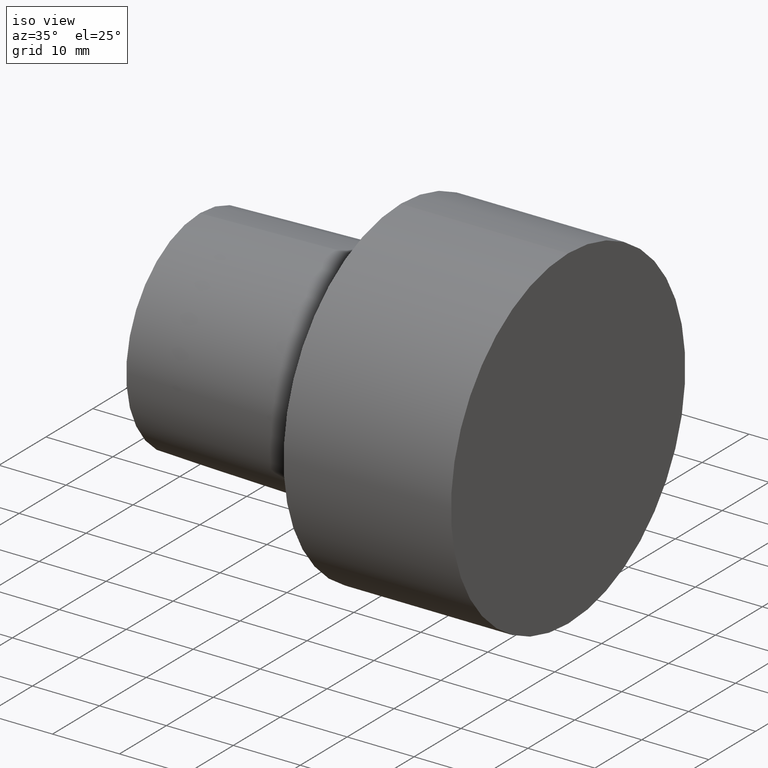
[diagram: clean part render]
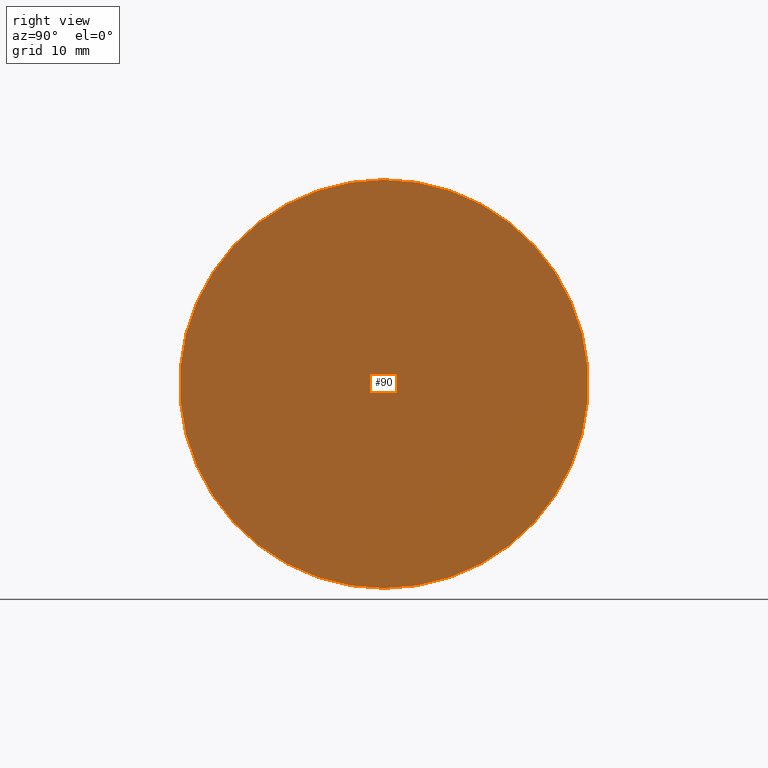
[diagram: tour spotlight — one face highlighted and labeled with its STEP entity id]
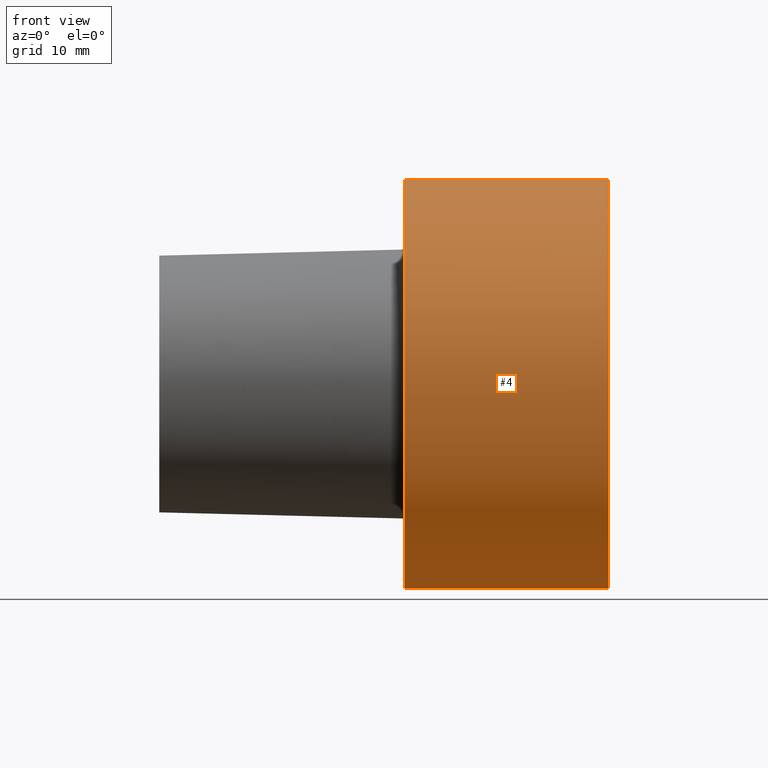
[diagram: tour spotlight — one face highlighted and labeled with its STEP entity id]
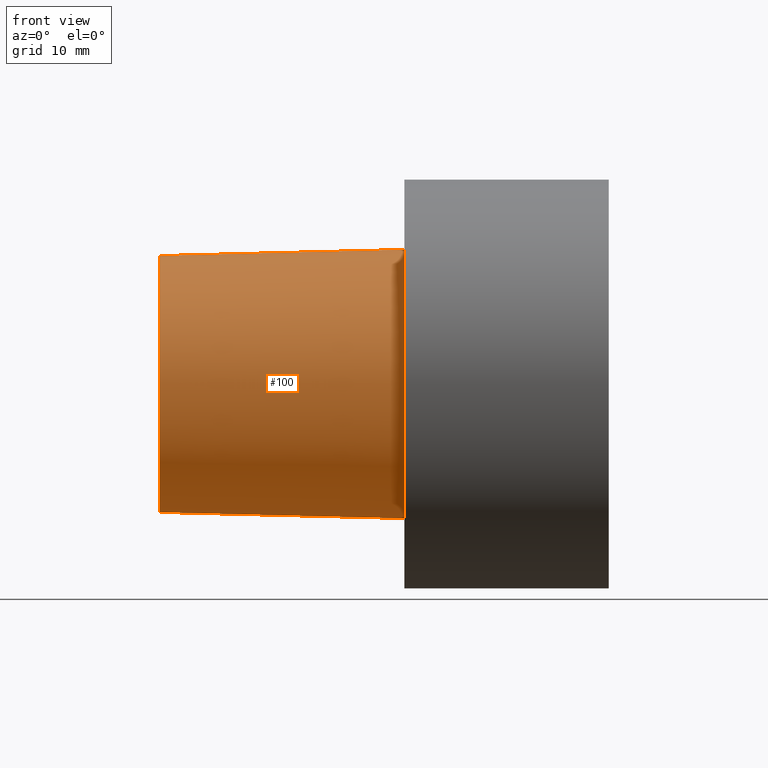
[diagram: tour spotlight — one face highlighted and labeled with its STEP entity id]
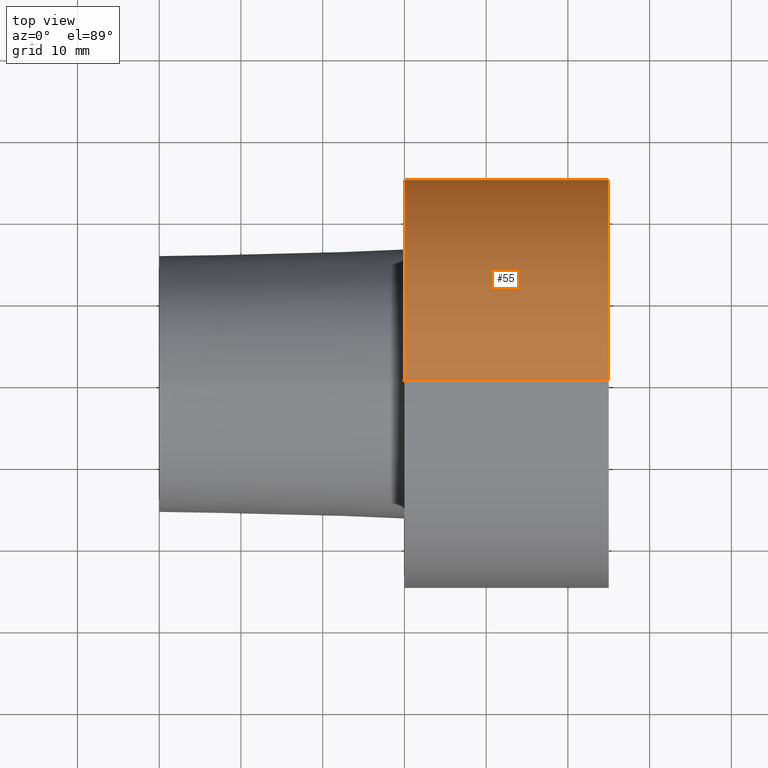
[diagram: tour spotlight — one face highlighted and labeled with its STEP entity id]
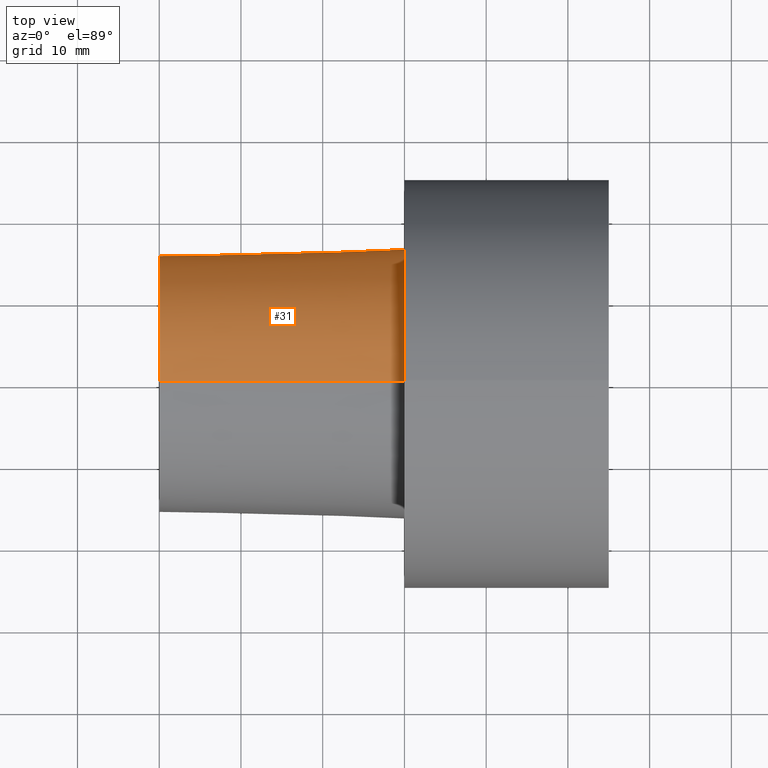
[diagram: tour spotlight — one face highlighted and labeled with its STEP entity id]
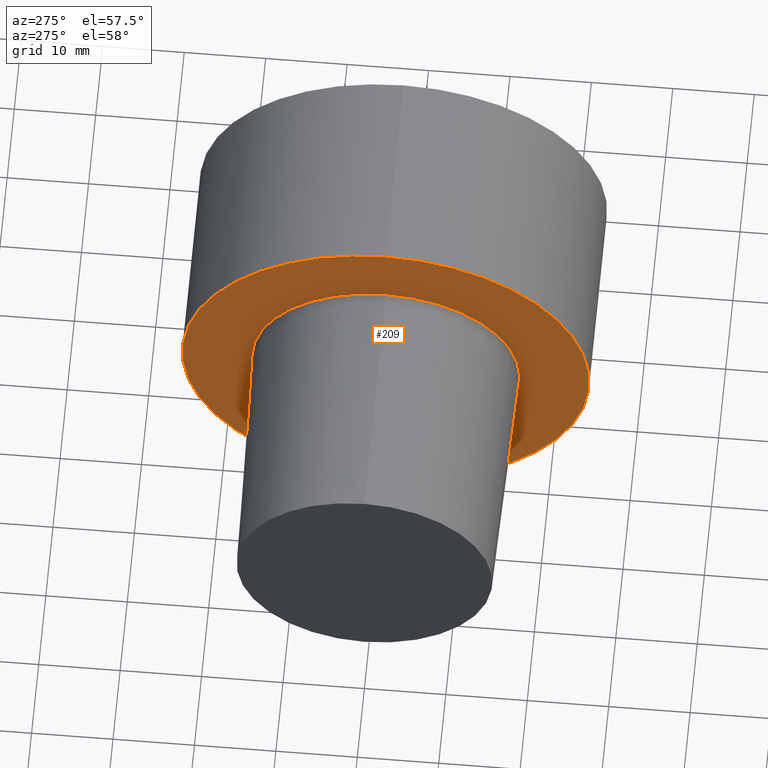
[diagram: tour spotlight — one face highlighted and labeled with its STEP entity id]
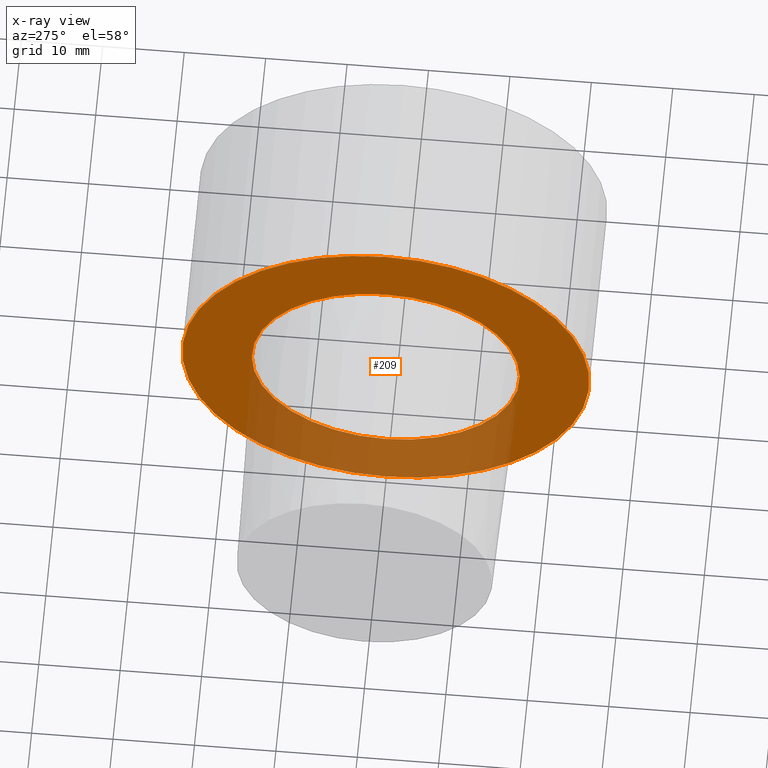
[diagram: x-ray of the same camera — body ghosted, this tour face saturated]
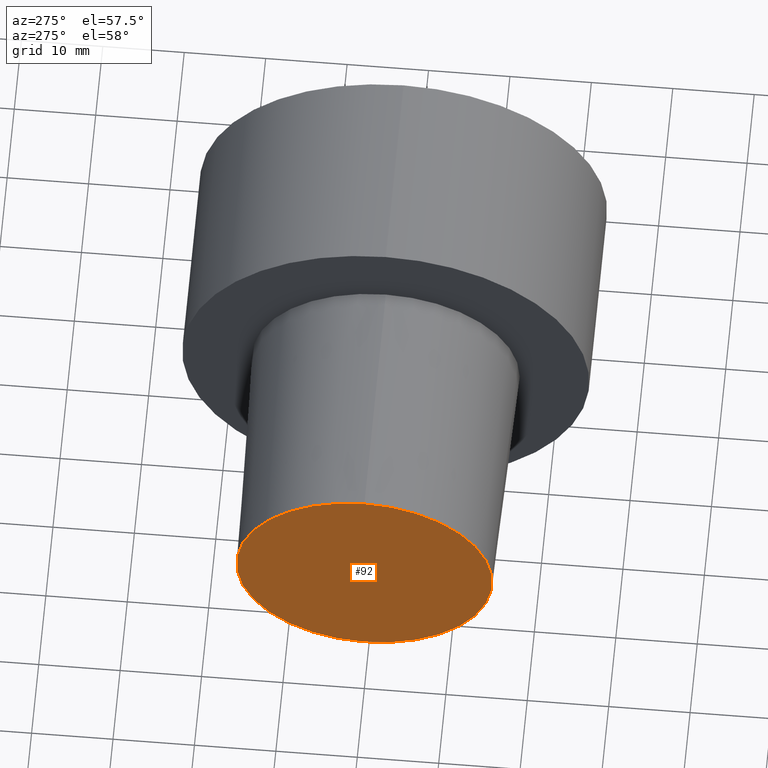
[diagram: tour spotlight — one face highlighted and labeled with its STEP entity id]
A machine part: a face-by-face anatomy tour. The part has 7 B-rep faces; the first image is the clean iso view, then the 7 largest visible faces are spotlighted one at a time (largest first), each with its STEP entity span.

Face 1 — right view, entity #90. In plain terms, the highlighted planar face has unit normal (-1, 0, 0).
Definition (entity closure, byte-faithful):
#5 = EDGE_LOOP ( 'NONE', ( #125, #108 ) ) ;
#14 = CARTESIAN_POINT ( 'NONE',  ( 24.99999997449999967, 3.061616994745535943E-15, -24.99999997449999967 ) ) ;
#19 = AXIS2_PLACEMENT_3D ( 'NONE', #191, #217, #151 ) ;
#26 = FACE_OUTER_BOUND ( 'NONE', #5, .T. ) ;
#56 = AXIS2_PLACEMENT_3D ( 'NONE', #128, #69, #252 ) ;
#60 = CIRCLE ( 'NONE', #19, 24.99999997449999967 ) ;
#69 = DIRECTION ( 'NONE',  ( -1.000000000000000000, 0.000000000000000000, 0.000000000000000000 ) ) ;
#86 = CARTESIAN_POINT ( 'NONE',  ( 24.99999997449999967, 0.000000000000000000, 0.000000000000000000 ) ) ;
#90 = ADVANCED_FACE ( 'NONE', ( #26 ), #104, .F. ) ;
#104 = PLANE ( 'NONE',  #153 ) ;
#108 = ORIENTED_EDGE ( 'NONE', *, *, #136, .F. ) ;
#125 = ORIENTED_EDGE ( 'NONE', *, *, #167, .F. ) ;
#128 = CARTESIAN_POINT ( 'NONE',  ( 24.99999997449999967, 0.000000000000000000, 0.000000000000000000 ) ) ;
#136 = EDGE_CURVE ( 'NONE', #246, #244, #181, .T. ) ;
#151 = DIRECTION ( 'NONE',  ( 0.000000000000000000, 0.000000000000000000, 1.000000000000000000 ) ) ;
#152 = DIRECTION ( 'NONE',  ( -1.000000000000000000, 0.000000000000000000, 0.000000000000000000 ) ) ;
#153 = AXIS2_PLACEMENT_3D ( 'NONE', #86, #152, #212 ) ;
#167 = EDGE_CURVE ( 'NONE', #244, #246, #60, .T. ) ;
#181 = CIRCLE ( 'NONE', #56, 24.99999997449999967 ) ;
#191 = CARTESIAN_POINT ( 'NONE',  ( 24.99999997449999967, 0.000000000000000000, 0.000000000000000000 ) ) ;
#212 = DIRECTION ( 'NONE',  ( 0.000000000000000000, 0.000000000000000000, 1.000000000000000000 ) ) ;
#217 = DIRECTION ( 'NONE',  ( -1.000000000000000000, 0.000000000000000000, 0.000000000000000000 ) ) ;
#244 = VERTEX_POINT ( 'NONE', #254 ) ;
#246 = VERTEX_POINT ( 'NONE', #14 ) ;
#252 = DIRECTION ( 'NONE',  ( 0.000000000000000000, 0.000000000000000000, 1.000000000000000000 ) ) ;
#254 = CARTESIAN_POINT ( 'NONE',  ( 24.99999997449999967, 0.000000000000000000, 24.99999997449999967 ) ) ;

Face 2 — front view, entity #4. In plain terms, the highlighted cylindrical surface (partial cylindrical patch) has radius 25 mm, axis along (-1, 0, 0).
Definition (entity closure, byte-faithful):
#4 = ADVANCED_FACE ( 'NONE', ( #140 ), #119, .T. ) ;
#13 = EDGE_CURVE ( 'NONE', #244, #40, #102, .T. ) ;
#14 = CARTESIAN_POINT ( 'NONE',  ( 24.99999997449999967, 3.061616994745535943E-15, -24.99999997449999967 ) ) ;
#15 = CARTESIAN_POINT ( 'NONE',  ( -29.99999996940000102, 3.061616994745535943E-15, -24.99999997449999967 ) ) ;
#21 = AXIS2_PLACEMENT_3D ( 'NONE', #81, #207, #183 ) ;
#22 = ORIENTED_EDGE ( 'NONE', *, *, #192, .F. ) ;
#33 = DIRECTION ( 'NONE',  ( -1.000000000000000000, 0.000000000000000000, 0.000000000000000000 ) ) ;
#40 = VERTEX_POINT ( 'NONE', #247 ) ;
#41 = AXIS2_PLACEMENT_3D ( 'NONE', #129, #111, #132 ) ;
#56 = AXIS2_PLACEMENT_3D ( 'NONE', #128, #69, #252 ) ;
#69 = DIRECTION ( 'NONE',  ( -1.000000000000000000, 0.000000000000000000, 0.000000000000000000 ) ) ;
#81 = CARTESIAN_POINT ( 'NONE',  ( -29.99999996940000102, 0.000000000000000000, 0.000000000000000000 ) ) ;
#82 = VERTEX_POINT ( 'NONE', #138 ) ;
#88 = VECTOR ( 'NONE', #33, 1000.000000000000000 ) ;
#102 = LINE ( 'NONE', #223, #126 ) ;
#111 = DIRECTION ( 'NONE',  ( -1.000000000000000000, 0.000000000000000000, 0.000000000000000000 ) ) ;
#119 = CYLINDRICAL_SURFACE ( 'NONE', #21, 24.99999997449999967 ) ;
#121 = ORIENTED_EDGE ( 'NONE', *, *, #218, .F. ) ;
#126 = VECTOR ( 'NONE', #164, 1000.000000000000000 ) ;
#128 = CARTESIAN_POINT ( 'NONE',  ( 24.99999997449999967, 0.000000000000000000, 0.000000000000000000 ) ) ;
#129 = CARTESIAN_POINT ( 'NONE',  ( 0.000000000000000000, 0.000000000000000000, 0.000000000000000000 ) ) ;
#132 = DIRECTION ( 'NONE',  ( 0.000000000000000000, 0.000000000000000000, 1.000000000000000000 ) ) ;
#136 = EDGE_CURVE ( 'NONE', #246, #244, #181, .T. ) ;
#138 = CARTESIAN_POINT ( 'NONE',  ( 0.000000000000000000, 3.061616994745535943E-15, -24.99999997449999967 ) ) ;
#140 = FACE_OUTER_BOUND ( 'NONE', #159, .T. ) ;
#142 = ORIENTED_EDGE ( 'NONE', *, *, #136, .T. ) ;
#156 = CIRCLE ( 'NONE', #41, 24.99999997449999967 ) ;
#159 = EDGE_LOOP ( 'NONE', ( #22, #142, #161, #121 ) ) ;
#161 = ORIENTED_EDGE ( 'NONE', *, *, #13, .T. ) ;
#164 = DIRECTION ( 'NONE',  ( -1.000000000000000000, 0.000000000000000000, 0.000000000000000000 ) ) ;
#181 = CIRCLE ( 'NONE', #56, 24.99999997449999967 ) ;
#183 = DIRECTION ( 'NONE',  ( 0.000000000000000000, 0.000000000000000000, 1.000000000000000000 ) ) ;
#192 = EDGE_CURVE ( 'NONE', #246, #82, #196, .T. ) ;
#196 = LINE ( 'NONE', #15, #88 ) ;
#207 = DIRECTION ( 'NONE',  ( -1.000000000000000000, 0.000000000000000000, 0.000000000000000000 ) ) ;
#218 = EDGE_CURVE ( 'NONE', #82, #40, #156, .T. ) ;
#223 = CARTESIAN_POINT ( 'NONE',  ( -29.99999996940000102, 0.000000000000000000, 24.99999997449999967 ) ) ;
#244 = VERTEX_POINT ( 'NONE', #254 ) ;
#246 = VERTEX_POINT ( 'NONE', #14 ) ;
#247 = CARTESIAN_POINT ( 'NONE',  ( 0.000000000000000000, 0.000000000000000000, 24.99999997449999967 ) ) ;
#252 = DIRECTION ( 'NONE',  ( 0.000000000000000000, 0.000000000000000000, 1.000000000000000000 ) ) ;
#254 = CARTESIAN_POINT ( 'NONE',  ( 24.99999997449999967, 0.000000000000000000, 24.99999997449999967 ) ) ;

Face 3 — front view, entity #100. In plain terms, the highlighted conical surface has half-angle 1.432 deg.
Definition (entity closure, byte-faithful):
#7 = DIRECTION ( 'NONE',  ( 0.000000000000000000, 0.000000000000000000, 1.000000000000000000 ) ) ;
#9 = VERTEX_POINT ( 'NONE', #210 ) ;
#16 = AXIS2_PLACEMENT_3D ( 'NONE', #67, #49, #34 ) ;
#17 = FACE_OUTER_BOUND ( 'NONE', #144, .T. ) ;
#24 = DIRECTION ( 'NONE',  ( -1.000000000000000000, 0.000000000000000000, 0.000000000000000000 ) ) ;
#32 = LINE ( 'NONE', #46, #52 ) ;
#34 = DIRECTION ( 'NONE',  ( 0.000000000000000000, 0.000000000000000000, -1.000000000000000000 ) ) ;
#36 = CIRCLE ( 'NONE', #206, 16.45500658257258664 ) ;
#39 = VERTEX_POINT ( 'NONE', #165 ) ;
#46 = CARTESIAN_POINT ( 'NONE',  ( 0.000000000000000000, 2.015157114129614578E-15, 16.45500658257258664 ) ) ;
#47 = CARTESIAN_POINT ( 'NONE',  ( 0.000000000000000000, 0.000000000000000000, -16.45500658257258664 ) ) ;
#49 = DIRECTION ( 'NONE',  ( 1.000000000000000000, 0.000000000000000000, 0.000000000000000000 ) ) ;
#50 = DIRECTION ( 'NONE',  ( 0.9996875914402667540, 3.060929943787468651E-18, 0.02499438977767799372 ) ) ;
#52 = VECTOR ( 'NONE', #50, 999.9999999999998863 ) ;
#59 = ORIENTED_EDGE ( 'NONE', *, *, #175, .T. ) ;
#61 = ORIENTED_EDGE ( 'NONE', *, *, #83, .F. ) ;
#64 = VECTOR ( 'NONE', #232, 999.9999999999998863 ) ;
#67 = CARTESIAN_POINT ( 'NONE',  ( 0.000000000000000000, 0.000000000000000000, 0.000000000000000000 ) ) ;
#73 = VERTEX_POINT ( 'NONE', #85 ) ;
#83 = EDGE_CURVE ( 'NONE', #9, #73, #171, .T. ) ;
#85 = CARTESIAN_POINT ( 'NONE',  ( -29.99999996940000102, 1.969228816626358703E-15, 15.70494056296217700 ) ) ;
#95 = CONICAL_SURFACE ( 'NONE', #16, 16.45500658257258664, 0.02499699292341668252 ) ;
#100 = ADVANCED_FACE ( 'NONE', ( #17 ), #95, .T. ) ;
#109 = CARTESIAN_POINT ( 'NONE',  ( 0.000000000000000000, 0.000000000000000000, 0.000000000000000000 ) ) ;
#113 = CARTESIAN_POINT ( 'NONE',  ( 0.000000000000000000, 0.000000000000000000, -16.45500658257258664 ) ) ;
#117 = ORIENTED_EDGE ( 'NONE', *, *, #155, .T. ) ;
#131 = LINE ( 'NONE', #47, #64 ) ;
#144 = EDGE_LOOP ( 'NONE', ( #188, #61, #117, #59 ) ) ;
#148 = EDGE_CURVE ( 'NONE', #73, #39, #32, .T. ) ;
#155 = EDGE_CURVE ( 'NONE', #9, #168, #131, .T. ) ;
#165 = CARTESIAN_POINT ( 'NONE',  ( 0.000000000000000000, 2.015157114129614578E-15, 16.45500658257258664 ) ) ;
#168 = VERTEX_POINT ( 'NONE', #113 ) ;
#171 = CIRCLE ( 'NONE', #194, 15.70494056296217700 ) ;
#173 = DIRECTION ( 'NONE',  ( 0.000000000000000000, 0.000000000000000000, 1.000000000000000000 ) ) ;
#175 = EDGE_CURVE ( 'NONE', #168, #39, #36, .T. ) ;
#188 = ORIENTED_EDGE ( 'NONE', *, *, #148, .F. ) ;
#190 = DIRECTION ( 'NONE',  ( -1.000000000000000000, 0.000000000000000000, 0.000000000000000000 ) ) ;
#194 = AXIS2_PLACEMENT_3D ( 'NONE', #202, #24, #7 ) ;
#202 = CARTESIAN_POINT ( 'NONE',  ( -29.99999996940000102, 0.000000000000000000, 0.000000000000000000 ) ) ;
#206 = AXIS2_PLACEMENT_3D ( 'NONE', #109, #190, #173 ) ;
#210 = CARTESIAN_POINT ( 'NONE',  ( -29.99999996940000102, 0.000000000000000000, -15.70494056296217700 ) ) ;
#232 = DIRECTION ( 'NONE',  ( 0.9996875914402667540, 0.000000000000000000, -0.02499438977767799372 ) ) ;

Face 4 — top view, entity #55. In plain terms, the highlighted cylindrical surface (partial cylindrical patch) has radius 25 mm, axis along (-1, 0, 0).
Definition (entity closure, byte-faithful):
#10 = ORIENTED_EDGE ( 'NONE', *, *, #192, .T. ) ;
#11 = AXIS2_PLACEMENT_3D ( 'NONE', #12, #78, #204 ) ;
#12 = CARTESIAN_POINT ( 'NONE',  ( -29.99999996940000102, 0.000000000000000000, 0.000000000000000000 ) ) ;
#13 = EDGE_CURVE ( 'NONE', #244, #40, #102, .T. ) ;
#14 = CARTESIAN_POINT ( 'NONE',  ( 24.99999997449999967, 3.061616994745535943E-15, -24.99999997449999967 ) ) ;
#15 = CARTESIAN_POINT ( 'NONE',  ( -29.99999996940000102, 3.061616994745535943E-15, -24.99999997449999967 ) ) ;
#19 = AXIS2_PLACEMENT_3D ( 'NONE', #191, #217, #151 ) ;
#33 = DIRECTION ( 'NONE',  ( -1.000000000000000000, 0.000000000000000000, 0.000000000000000000 ) ) ;
#40 = VERTEX_POINT ( 'NONE', #247 ) ;
#43 = ORIENTED_EDGE ( 'NONE', *, *, #167, .T. ) ;
#44 = EDGE_CURVE ( 'NONE', #40, #82, #98, .T. ) ;
#45 = FACE_OUTER_BOUND ( 'NONE', #241, .T. ) ;
#55 = ADVANCED_FACE ( 'NONE', ( #45 ), #211, .T. ) ;
#60 = CIRCLE ( 'NONE', #19, 24.99999997449999967 ) ;
#66 = CARTESIAN_POINT ( 'NONE',  ( 0.000000000000000000, 0.000000000000000000, 0.000000000000000000 ) ) ;
#78 = DIRECTION ( 'NONE',  ( -1.000000000000000000, 0.000000000000000000, 0.000000000000000000 ) ) ;
#82 = VERTEX_POINT ( 'NONE', #138 ) ;
#88 = VECTOR ( 'NONE', #33, 1000.000000000000000 ) ;
#98 = CIRCLE ( 'NONE', #222, 24.99999997449999967 ) ;
#102 = LINE ( 'NONE', #223, #126 ) ;
#124 = ORIENTED_EDGE ( 'NONE', *, *, #44, .F. ) ;
#126 = VECTOR ( 'NONE', #164, 1000.000000000000000 ) ;
#137 = ORIENTED_EDGE ( 'NONE', *, *, #13, .F. ) ;
#138 = CARTESIAN_POINT ( 'NONE',  ( 0.000000000000000000, 3.061616994745535943E-15, -24.99999997449999967 ) ) ;
#147 = DIRECTION ( 'NONE',  ( 0.000000000000000000, 0.000000000000000000, 1.000000000000000000 ) ) ;
#151 = DIRECTION ( 'NONE',  ( 0.000000000000000000, 0.000000000000000000, 1.000000000000000000 ) ) ;
#164 = DIRECTION ( 'NONE',  ( -1.000000000000000000, 0.000000000000000000, 0.000000000000000000 ) ) ;
#167 = EDGE_CURVE ( 'NONE', #244, #246, #60, .T. ) ;
#185 = DIRECTION ( 'NONE',  ( -1.000000000000000000, 0.000000000000000000, 0.000000000000000000 ) ) ;
#191 = CARTESIAN_POINT ( 'NONE',  ( 24.99999997449999967, 0.000000000000000000, 0.000000000000000000 ) ) ;
#192 = EDGE_CURVE ( 'NONE', #246, #82, #196, .T. ) ;
#196 = LINE ( 'NONE', #15, #88 ) ;
#204 = DIRECTION ( 'NONE',  ( 0.000000000000000000, 0.000000000000000000, 1.000000000000000000 ) ) ;
#211 = CYLINDRICAL_SURFACE ( 'NONE', #11, 24.99999997449999967 ) ;
#217 = DIRECTION ( 'NONE',  ( -1.000000000000000000, 0.000000000000000000, 0.000000000000000000 ) ) ;
#222 = AXIS2_PLACEMENT_3D ( 'NONE', #66, #185, #147 ) ;
#223 = CARTESIAN_POINT ( 'NONE',  ( -29.99999996940000102, 0.000000000000000000, 24.99999997449999967 ) ) ;
#241 = EDGE_LOOP ( 'NONE', ( #43, #10, #124, #137 ) ) ;
#244 = VERTEX_POINT ( 'NONE', #254 ) ;
#246 = VERTEX_POINT ( 'NONE', #14 ) ;
#247 = CARTESIAN_POINT ( 'NONE',  ( 0.000000000000000000, 0.000000000000000000, 24.99999997449999967 ) ) ;
#254 = CARTESIAN_POINT ( 'NONE',  ( 24.99999997449999967, 0.000000000000000000, 24.99999997449999967 ) ) ;

Face 5 — top view, entity #31. In plain terms, the highlighted conical surface has half-angle 1.432 deg.
Definition (entity closure, byte-faithful):
#9 = VERTEX_POINT ( 'NONE', #210 ) ;
#29 = ORIENTED_EDGE ( 'NONE', *, *, #130, .F. ) ;
#30 = CARTESIAN_POINT ( 'NONE',  ( 0.000000000000000000, 0.000000000000000000, 0.000000000000000000 ) ) ;
#31 = ADVANCED_FACE ( 'NONE', ( #225 ), #166, .T. ) ;
#32 = LINE ( 'NONE', #46, #52 ) ;
#37 = DIRECTION ( 'NONE',  ( 1.000000000000000000, 0.000000000000000000, 0.000000000000000000 ) ) ;
#39 = VERTEX_POINT ( 'NONE', #165 ) ;
#46 = CARTESIAN_POINT ( 'NONE',  ( 0.000000000000000000, 2.015157114129614578E-15, 16.45500658257258664 ) ) ;
#47 = CARTESIAN_POINT ( 'NONE',  ( 0.000000000000000000, 0.000000000000000000, -16.45500658257258664 ) ) ;
#50 = DIRECTION ( 'NONE',  ( 0.9996875914402667540, 3.060929943787468651E-18, 0.02499438977767799372 ) ) ;
#51 = DIRECTION ( 'NONE',  ( 0.000000000000000000, 0.000000000000000000, 1.000000000000000000 ) ) ;
#52 = VECTOR ( 'NONE', #50, 999.9999999999998863 ) ;
#62 = EDGE_LOOP ( 'NONE', ( #29, #106, #84, #227 ) ) ;
#64 = VECTOR ( 'NONE', #232, 999.9999999999998863 ) ;
#73 = VERTEX_POINT ( 'NONE', #85 ) ;
#74 = CIRCLE ( 'NONE', #228, 16.45500658257258664 ) ;
#84 = ORIENTED_EDGE ( 'NONE', *, *, #253, .T. ) ;
#85 = CARTESIAN_POINT ( 'NONE',  ( -29.99999996940000102, 1.969228816626358703E-15, 15.70494056296217700 ) ) ;
#91 = CARTESIAN_POINT ( 'NONE',  ( -29.99999996940000102, 0.000000000000000000, 0.000000000000000000 ) ) ;
#93 = CARTESIAN_POINT ( 'NONE',  ( 0.000000000000000000, 0.000000000000000000, 0.000000000000000000 ) ) ;
#106 = ORIENTED_EDGE ( 'NONE', *, *, #148, .T. ) ;
#107 = DIRECTION ( 'NONE',  ( 0.000000000000000000, 0.000000000000000000, -1.000000000000000000 ) ) ;
#112 = AXIS2_PLACEMENT_3D ( 'NONE', #30, #37, #107 ) ;
#113 = CARTESIAN_POINT ( 'NONE',  ( 0.000000000000000000, 0.000000000000000000, -16.45500658257258664 ) ) ;
#130 = EDGE_CURVE ( 'NONE', #73, #9, #213, .T. ) ;
#131 = LINE ( 'NONE', #47, #64 ) ;
#148 = EDGE_CURVE ( 'NONE', #73, #39, #32, .T. ) ;
#155 = EDGE_CURVE ( 'NONE', #9, #168, #131, .T. ) ;
#165 = CARTESIAN_POINT ( 'NONE',  ( 0.000000000000000000, 2.015157114129614578E-15, 16.45500658257258664 ) ) ;
#166 = CONICAL_SURFACE ( 'NONE', #112, 16.45500658257258664, 0.02499699292341668252 ) ;
#168 = VERTEX_POINT ( 'NONE', #113 ) ;
#176 = AXIS2_PLACEMENT_3D ( 'NONE', #91, #251, #51 ) ;
#195 = DIRECTION ( 'NONE',  ( -1.000000000000000000, 0.000000000000000000, 0.000000000000000000 ) ) ;
#210 = CARTESIAN_POINT ( 'NONE',  ( -29.99999996940000102, 0.000000000000000000, -15.70494056296217700 ) ) ;
#213 = CIRCLE ( 'NONE', #176, 15.70494056296217700 ) ;
#225 = FACE_OUTER_BOUND ( 'NONE', #62, .T. ) ;
#227 = ORIENTED_EDGE ( 'NONE', *, *, #155, .F. ) ;
#228 = AXIS2_PLACEMENT_3D ( 'NONE', #93, #195, #249 ) ;
#232 = DIRECTION ( 'NONE',  ( 0.9996875914402667540, 0.000000000000000000, -0.02499438977767799372 ) ) ;
#249 = DIRECTION ( 'NONE',  ( 0.000000000000000000, 0.000000000000000000, 1.000000000000000000 ) ) ;
#251 = DIRECTION ( 'NONE',  ( -1.000000000000000000, 0.000000000000000000, 0.000000000000000000 ) ) ;
#253 = EDGE_CURVE ( 'NONE', #39, #168, #74, .T. ) ;

Face 6 — auxiliary view, entity #209. An x-ray twin of the same camera follows (body ghosted, this face saturated) — the face is partly hidden behind the body. In plain terms, the highlighted planar face has unit normal (1, 0, 0).
Definition (entity closure, byte-faithful):
#28 = EDGE_LOOP ( 'NONE', ( #231, #186 ) ) ;
#36 = CIRCLE ( 'NONE', #206, 16.45500658257258664 ) ;
#39 = VERTEX_POINT ( 'NONE', #165 ) ;
#40 = VERTEX_POINT ( 'NONE', #247 ) ;
#41 = AXIS2_PLACEMENT_3D ( 'NONE', #129, #111, #132 ) ;
#44 = EDGE_CURVE ( 'NONE', #40, #82, #98, .T. ) ;
#63 = ORIENTED_EDGE ( 'NONE', *, *, #218, .T. ) ;
#66 = CARTESIAN_POINT ( 'NONE',  ( 0.000000000000000000, 0.000000000000000000, 0.000000000000000000 ) ) ;
#68 = DIRECTION ( 'NONE',  ( 1.000000000000000000, 0.000000000000000000, 0.000000000000000000 ) ) ;
#70 = DIRECTION ( 'NONE',  ( 0.000000000000000000, 1.000000000000000000, 0.000000000000000000 ) ) ;
#74 = CIRCLE ( 'NONE', #228, 16.45500658257258664 ) ;
#82 = VERTEX_POINT ( 'NONE', #138 ) ;
#93 = CARTESIAN_POINT ( 'NONE',  ( 0.000000000000000000, 0.000000000000000000, 0.000000000000000000 ) ) ;
#98 = CIRCLE ( 'NONE', #222, 24.99999997449999967 ) ;
#109 = CARTESIAN_POINT ( 'NONE',  ( 0.000000000000000000, 0.000000000000000000, 0.000000000000000000 ) ) ;
#110 = PLANE ( 'NONE',  #122 ) ;
#111 = DIRECTION ( 'NONE',  ( -1.000000000000000000, 0.000000000000000000, 0.000000000000000000 ) ) ;
#113 = CARTESIAN_POINT ( 'NONE',  ( 0.000000000000000000, 0.000000000000000000, -16.45500658257258664 ) ) ;
#122 = AXIS2_PLACEMENT_3D ( 'NONE', #216, #68, #70 ) ;
#129 = CARTESIAN_POINT ( 'NONE',  ( 0.000000000000000000, 0.000000000000000000, 0.000000000000000000 ) ) ;
#132 = DIRECTION ( 'NONE',  ( 0.000000000000000000, 0.000000000000000000, 1.000000000000000000 ) ) ;
#138 = CARTESIAN_POINT ( 'NONE',  ( 0.000000000000000000, 3.061616994745535943E-15, -24.99999997449999967 ) ) ;
#147 = DIRECTION ( 'NONE',  ( 0.000000000000000000, 0.000000000000000000, 1.000000000000000000 ) ) ;
#150 = FACE_BOUND ( 'NONE', #28, .T. ) ;
#156 = CIRCLE ( 'NONE', #41, 24.99999997449999967 ) ;
#165 = CARTESIAN_POINT ( 'NONE',  ( 0.000000000000000000, 2.015157114129614578E-15, 16.45500658257258664 ) ) ;
#168 = VERTEX_POINT ( 'NONE', #113 ) ;
#172 = FACE_OUTER_BOUND ( 'NONE', #229, .T. ) ;
#173 = DIRECTION ( 'NONE',  ( 0.000000000000000000, 0.000000000000000000, 1.000000000000000000 ) ) ;
#175 = EDGE_CURVE ( 'NONE', #168, #39, #36, .T. ) ;
#178 = ORIENTED_EDGE ( 'NONE', *, *, #44, .T. ) ;
#185 = DIRECTION ( 'NONE',  ( -1.000000000000000000, 0.000000000000000000, 0.000000000000000000 ) ) ;
#186 = ORIENTED_EDGE ( 'NONE', *, *, #253, .F. ) ;
#190 = DIRECTION ( 'NONE',  ( -1.000000000000000000, 0.000000000000000000, 0.000000000000000000 ) ) ;
#195 = DIRECTION ( 'NONE',  ( -1.000000000000000000, 0.000000000000000000, 0.000000000000000000 ) ) ;
#206 = AXIS2_PLACEMENT_3D ( 'NONE', #109, #190, #173 ) ;
#209 = ADVANCED_FACE ( 'NONE', ( #150, #172 ), #110, .F. ) ;
#216 = CARTESIAN_POINT ( 'NONE',  ( 0.000000000000000000, 24.99999997449999967, 0.000000000000000000 ) ) ;
#218 = EDGE_CURVE ( 'NONE', #82, #40, #156, .T. ) ;
#222 = AXIS2_PLACEMENT_3D ( 'NONE', #66, #185, #147 ) ;
#228 = AXIS2_PLACEMENT_3D ( 'NONE', #93, #195, #249 ) ;
#229 = EDGE_LOOP ( 'NONE', ( #178, #63 ) ) ;
#231 = ORIENTED_EDGE ( 'NONE', *, *, #175, .F. ) ;
#247 = CARTESIAN_POINT ( 'NONE',  ( 0.000000000000000000, 0.000000000000000000, 24.99999997449999967 ) ) ;
#249 = DIRECTION ( 'NONE',  ( 0.000000000000000000, 0.000000000000000000, 1.000000000000000000 ) ) ;
#253 = EDGE_CURVE ( 'NONE', #39, #168, #74, .T. ) ;

Face 7 — auxiliary view, entity #92. In plain terms, the highlighted planar face has unit normal (1, 0, 0).
Definition (entity closure, byte-faithful):
#7 = DIRECTION ( 'NONE',  ( 0.000000000000000000, 0.000000000000000000, 1.000000000000000000 ) ) ;
#8 = ORIENTED_EDGE ( 'NONE', *, *, #130, .T. ) ;
#9 = VERTEX_POINT ( 'NONE', #210 ) ;
#24 = DIRECTION ( 'NONE',  ( -1.000000000000000000, 0.000000000000000000, 0.000000000000000000 ) ) ;
#51 = DIRECTION ( 'NONE',  ( 0.000000000000000000, 0.000000000000000000, 1.000000000000000000 ) ) ;
#73 = VERTEX_POINT ( 'NONE', #85 ) ;
#83 = EDGE_CURVE ( 'NONE', #9, #73, #171, .T. ) ;
#85 = CARTESIAN_POINT ( 'NONE',  ( -29.99999996940000102, 1.969228816626358703E-15, 15.70494056296217700 ) ) ;
#89 = DIRECTION ( 'NONE',  ( 0.000000000000000000, 1.000000000000000000, 0.000000000000000000 ) ) ;
#91 = CARTESIAN_POINT ( 'NONE',  ( -29.99999996940000102, 0.000000000000000000, 0.000000000000000000 ) ) ;
#92 = ADVANCED_FACE ( 'NONE', ( #233 ), #149, .F. ) ;
#130 = EDGE_CURVE ( 'NONE', #73, #9, #213, .T. ) ;
#145 = AXIS2_PLACEMENT_3D ( 'NONE', #169, #193, #89 ) ;
#149 = PLANE ( 'NONE',  #145 ) ;
#163 = EDGE_LOOP ( 'NONE', ( #189, #8 ) ) ;
#169 = CARTESIAN_POINT ( 'NONE',  ( -29.99999996940000102, 15.70494056296217700, 0.000000000000000000 ) ) ;
#171 = CIRCLE ( 'NONE', #194, 15.70494056296217700 ) ;
#176 = AXIS2_PLACEMENT_3D ( 'NONE', #91, #251, #51 ) ;
#189 = ORIENTED_EDGE ( 'NONE', *, *, #83, .T. ) ;
#193 = DIRECTION ( 'NONE',  ( 1.000000000000000000, 0.000000000000000000, 0.000000000000000000 ) ) ;
#194 = AXIS2_PLACEMENT_3D ( 'NONE', #202, #24, #7 ) ;
#202 = CARTESIAN_POINT ( 'NONE',  ( -29.99999996940000102, 0.000000000000000000, 0.000000000000000000 ) ) ;
#210 = CARTESIAN_POINT ( 'NONE',  ( -29.99999996940000102, 0.000000000000000000, -15.70494056296217700 ) ) ;
#213 = CIRCLE ( 'NONE', #176, 15.70494056296217700 ) ;
#233 = FACE_OUTER_BOUND ( 'NONE', #163, .T. ) ;
#251 = DIRECTION ( 'NONE',  ( -1.000000000000000000, 0.000000000000000000, 0.000000000000000000 ) ) ;